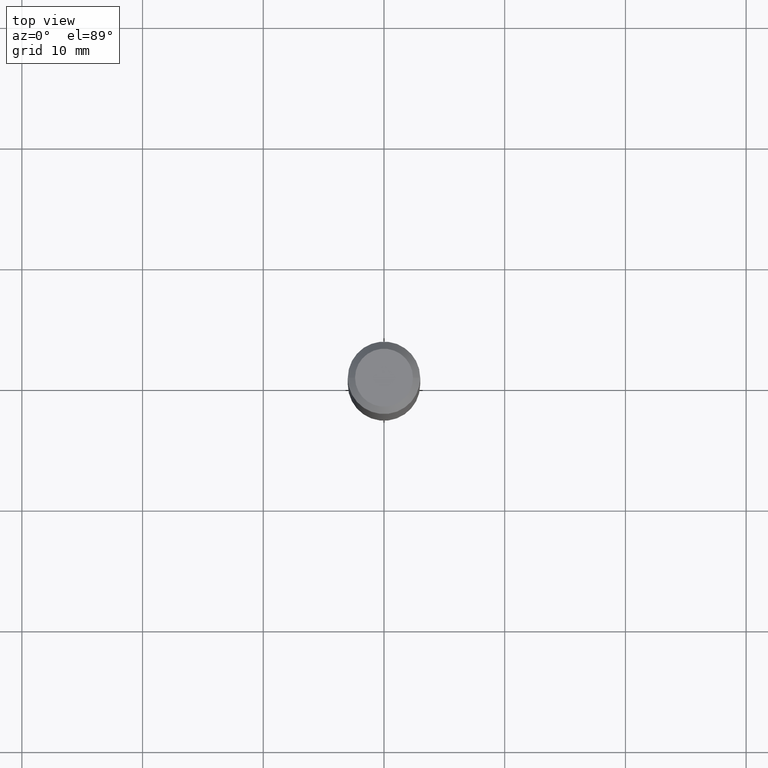
[diagram: clean part render]
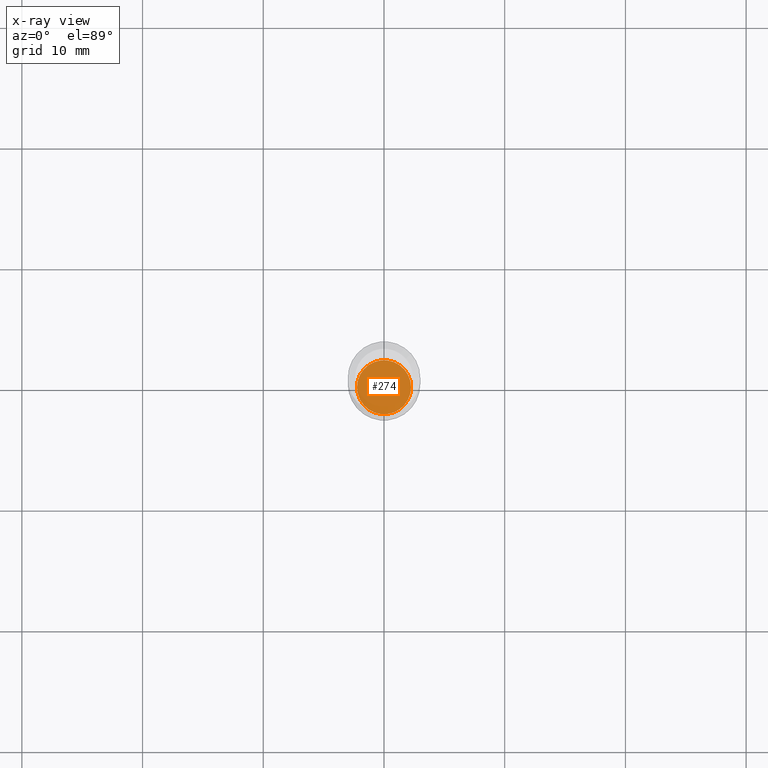
[diagram: x-ray — body ghosted, one internal face saturated and labeled with its STEP entity id]
A machine part, top view, then the same camera in x-ray: the body is ghosted and one INTERNAL B-rep face — a face not visible from any outside direction — is saturated and labeled: STEP entity #274.
In plain terms, the highlighted planar face has unit normal (-0, 0, 1).
Its self-contained STEP definition (entity closure, byte-faithful):
#25 = DIRECTION ( 'NONE',  ( 1.000000000000000000, -6.982962677686264344E-15, 0.000000000000000000 ) ) ;
#28 = CARTESIAN_POINT ( 'NONE',  ( 4.409669351313038346E-29, -6.295839150201959750E-15, -1.803200000000000136 ) ) ;
#45 = ORIENTED_EDGE ( 'NONE', *, *, #225, .F. ) ;
#50 = DIRECTION ( 'NONE',  ( -2.445468806185136597E-29, 3.491481338843145583E-15, 1.000000000000000000 ) ) ;
#75 = ORIENTED_EDGE ( 'NONE', *, *, #115, .F. ) ;
#77 = AXIS2_PLACEMENT_3D ( 'NONE', #28, #336, #509 ) ;
#90 = EDGE_LOOP ( 'NONE', ( #75, #45 ) ) ;
#115 = EDGE_CURVE ( 'NONE', #237, #316, #317, .T. ) ;
#146 = CARTESIAN_POINT ( 'NONE',  ( 0.08809999999999999776, -6.911038162106119696E-15, -1.803200000000000136 ) ) ;
#156 = CIRCLE ( 'NONE', #484, 0.08809999999999999776 ) ;
#161 = AXIS2_PLACEMENT_3D ( 'NONE', #279, #50, #357 ) ;
#216 = CARTESIAN_POINT ( 'NONE',  ( 4.409669351313038346E-29, -6.295839150201959750E-15, -1.803200000000000136 ) ) ;
#225 = EDGE_CURVE ( 'NONE', #316, #237, #156, .T. ) ;
#227 = CARTESIAN_POINT ( 'NONE',  ( -0.08809999999999999776, -5.667201772823201386E-15, -1.803200000000000136 ) ) ;
#237 = VERTEX_POINT ( 'NONE', #146 ) ;
#274 = ADVANCED_FACE ( 'NONE', ( #465 ), #301, .F. ) ;
#279 = CARTESIAN_POINT ( 'NONE',  ( 4.409669351313038346E-29, -6.295839150201959750E-15, -1.803200000000000136 ) ) ;
#301 = PLANE ( 'NONE',  #77 ) ;
#316 = VERTEX_POINT ( 'NONE', #227 ) ;
#317 = CIRCLE ( 'NONE', #161, 0.08809999999999999776 ) ;
#329 = DIRECTION ( 'NONE',  ( -2.445468806185136597E-29, 3.491481338843145583E-15, 1.000000000000000000 ) ) ;
#336 = DIRECTION ( 'NONE',  ( -2.438088387897960049E-29, 3.491481338843145188E-15, 1.000000000000000000 ) ) ;
#357 = DIRECTION ( 'NONE',  ( 1.000000000000000000, -6.982962677686264344E-15, 0.000000000000000000 ) ) ;
#465 = FACE_OUTER_BOUND ( 'NONE', #90, .T. ) ;
#484 = AXIS2_PLACEMENT_3D ( 'NONE', #216, #329, #25 ) ;
#509 = DIRECTION ( 'NONE',  ( 1.000000000000000000, -6.982962677686265922E-15, 4.876176775795935793E-29 ) ) ;